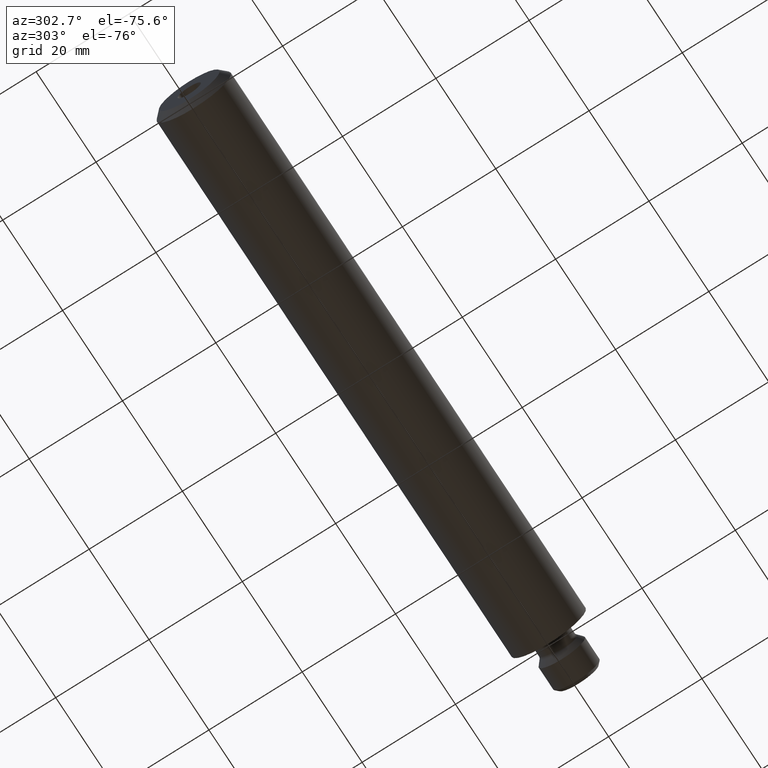
[diagram: clean part render]
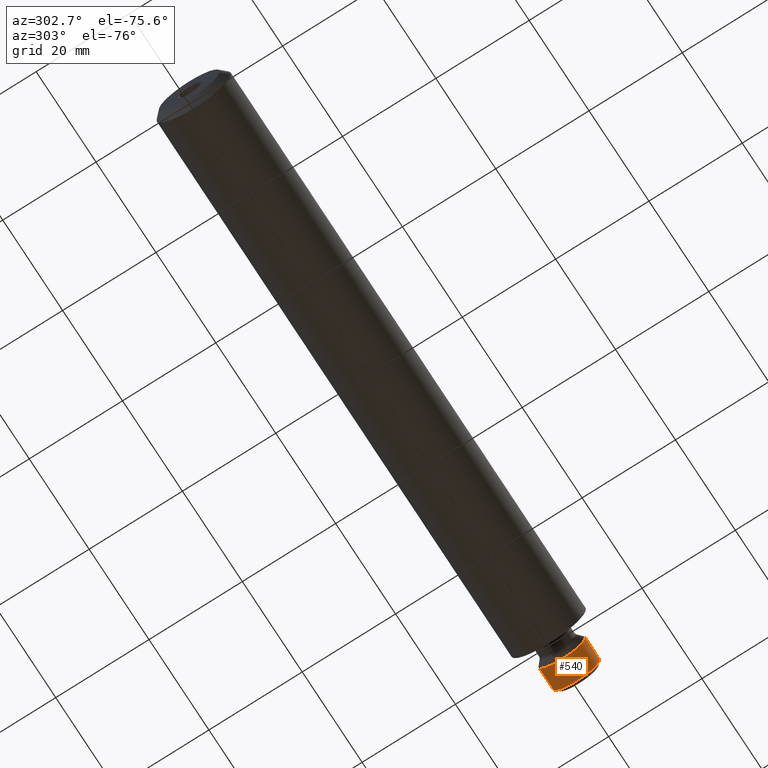
[diagram: same view with one face highlighted and labeled with its STEP entity id]
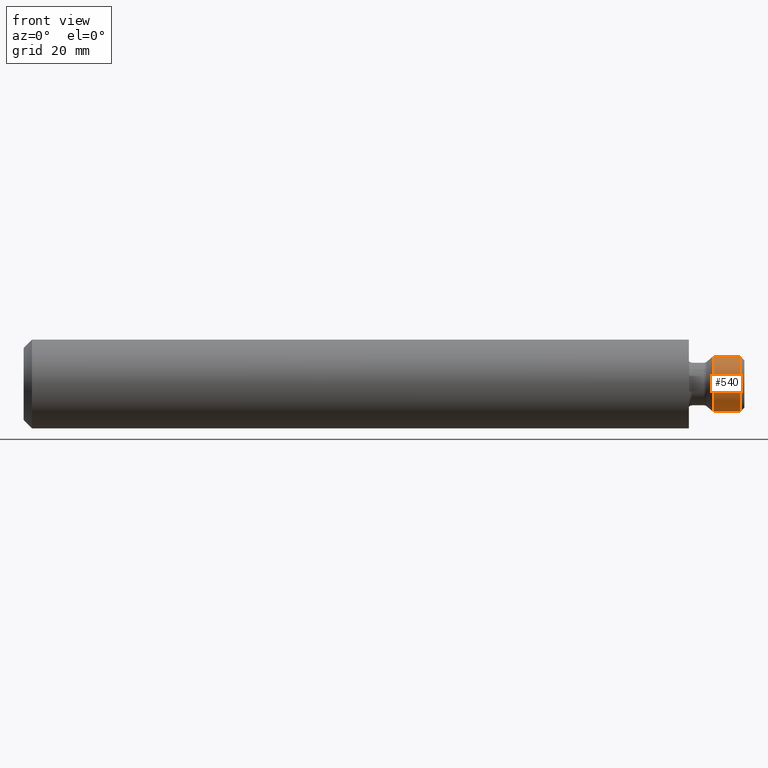
[diagram: same view with one face highlighted and labeled with its STEP entity id]
A machine part, auxiliary view. The second image highlights one B-rep face of the part: STEP entity #540.
A second angle (front view) of the same face is appended — the face is thin or edge-on in the first view.
In plain terms, the highlighted cylindrical surface (bore or boss wall) has radius 5 mm, axis along (-1, -0, 0).
Its self-contained STEP definition (entity closure, byte-faithful):
#18 = EDGE_LOOP ( 'NONE', ( #220 ) ) ;
#35 = CARTESIAN_POINT ( 'NONE',  ( 19.57051663148333600, 0.0000000000000000000, 0.0000000000000000000 ) ) ;
#62 = AXIS2_PLACEMENT_3D ( 'NONE', #464, #382, #307 ) ;
#80 = CARTESIAN_POINT ( 'NONE',  ( 24.44999999999999600, 3.531808898481553400, 3.539254992877247200 ) ) ;
#88 = AXIS2_PLACEMENT_3D ( 'NONE', #35, #446, #293 ) ;
#119 = DIRECTION ( 'NONE',  ( 0.0000000000000000000, 0.7063617796963105300, 0.7078509985754494200 ) ) ;
#122 = CYLINDRICAL_SURFACE ( 'NONE', #144, 5.000000000000000000 ) ;
#144 = AXIS2_PLACEMENT_3D ( 'NONE', #377, #372, #119 ) ;
#172 = VERTEX_POINT ( 'NONE', #201 ) ;
#201 = CARTESIAN_POINT ( 'NONE',  ( 19.57051663148333600, 0.0000000000000000000, -5.000000000000000000 ) ) ;
#220 = ORIENTED_EDGE ( 'NONE', *, *, #314, .T. ) ;
#268 = FACE_OUTER_BOUND ( 'NONE', #18, .T. ) ;
#292 = ORIENTED_EDGE ( 'NONE', *, *, #493, .T. ) ;
#293 = DIRECTION ( 'NONE',  ( 0.0000000000000000000, 0.0000000000000000000, -1.000000000000000000 ) ) ;
#307 = DIRECTION ( 'NONE',  ( 0.0000000000000000000, 0.7063617796963105300, 0.7078509985754494200 ) ) ;
#314 = EDGE_CURVE ( 'NONE', #374, #374, #485, .T. ) ;
#331 = CIRCLE ( 'NONE', #88, 5.000000000000000000 ) ;
#372 = DIRECTION ( 'NONE',  ( -1.000000000000000000, -0.0000000000000000000, 0.0000000000000000000 ) ) ;
#374 = VERTEX_POINT ( 'NONE', #80 ) ;
#377 = CARTESIAN_POINT ( 'NONE',  ( 11.48902577285627300, 9.508899211970429500E-016, 7.781577171327633800E-017 ) ) ;
#382 = DIRECTION ( 'NONE',  ( -1.000000000000000000, -0.0000000000000000000, 0.0000000000000000000 ) ) ;
#383 = EDGE_LOOP ( 'NONE', ( #292 ) ) ;
#384 = FACE_OUTER_BOUND ( 'NONE', #383, .T. ) ;
#446 = DIRECTION ( 'NONE',  ( 1.000000000000000000, 0.0000000000000000000, 0.0000000000000000000 ) ) ;
#464 = CARTESIAN_POINT ( 'NONE',  ( 24.44999999999999600, 9.508899211970429500E-016, 7.781577171327633800E-017 ) ) ;
#485 = CIRCLE ( 'NONE', #62, 5.000000000000000000 ) ;
#493 = EDGE_CURVE ( 'NONE', #172, #172, #331, .T. ) ;
#540 = ADVANCED_FACE ( 'NONE', ( #268, #384 ), #122, .T. ) ;